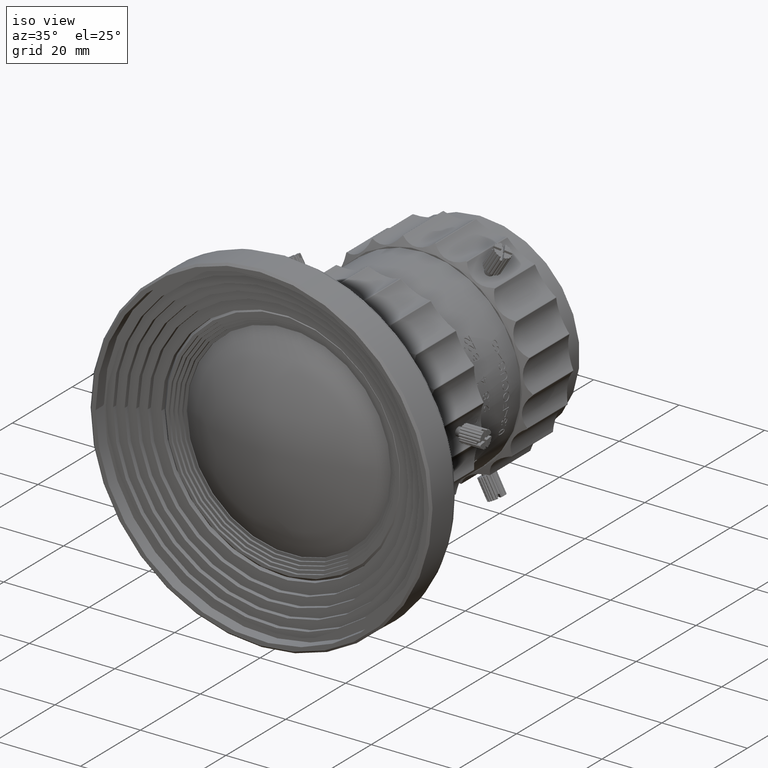
[diagram: clean part render]
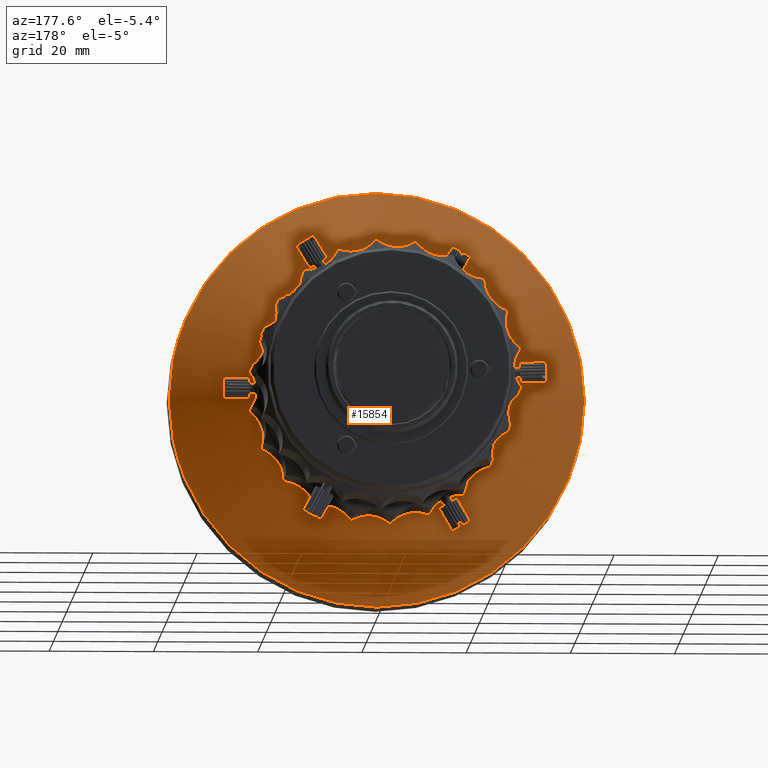
[diagram: tour spotlight — one face highlighted and labeled with its STEP entity id]
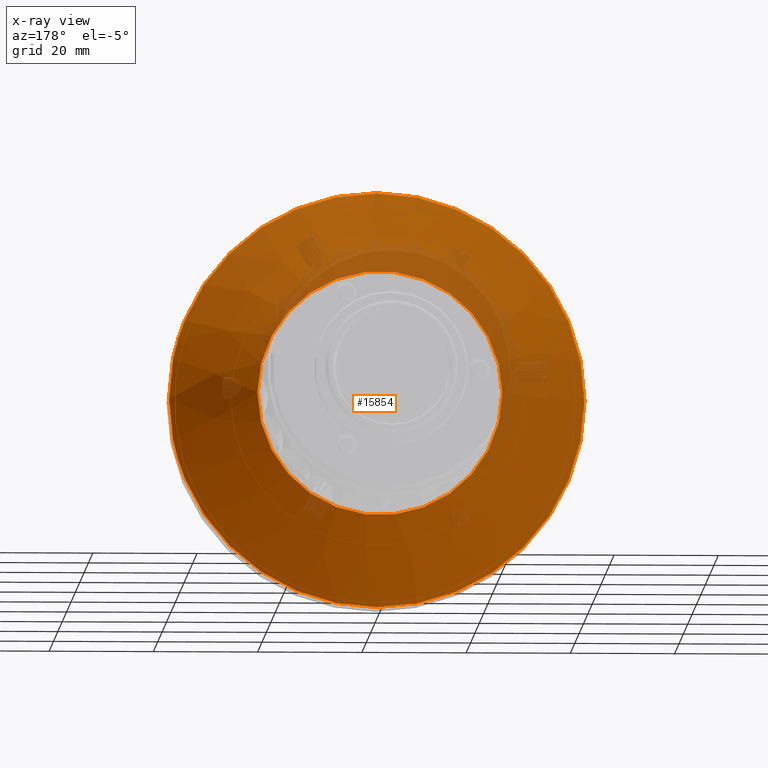
[diagram: x-ray of the same camera — body ghosted, this tour face saturated]
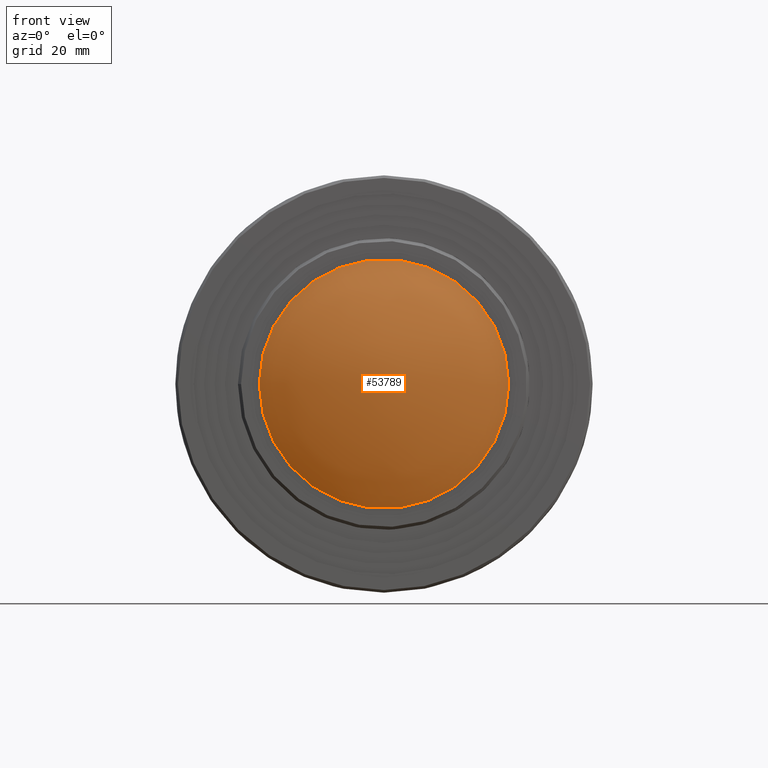
[diagram: tour spotlight — one face highlighted and labeled with its STEP entity id]
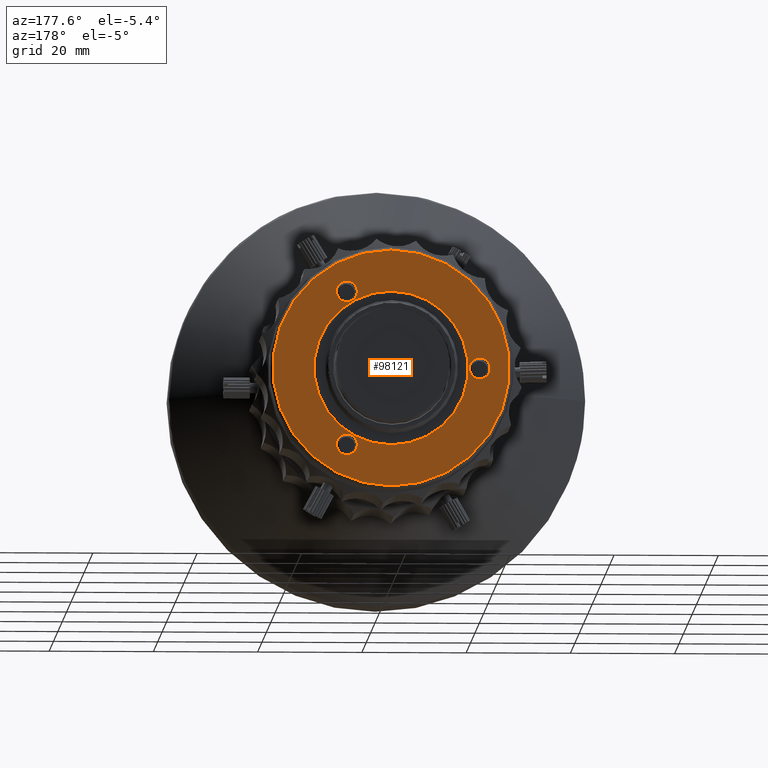
[diagram: tour spotlight — one face highlighted and labeled with its STEP entity id]
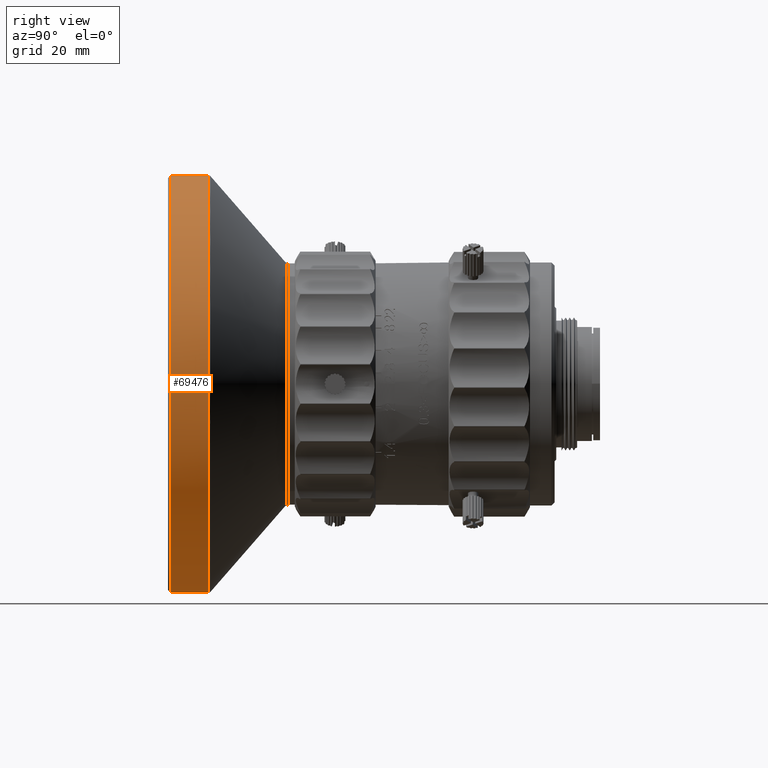
[diagram: tour spotlight — one face highlighted and labeled with its STEP entity id]
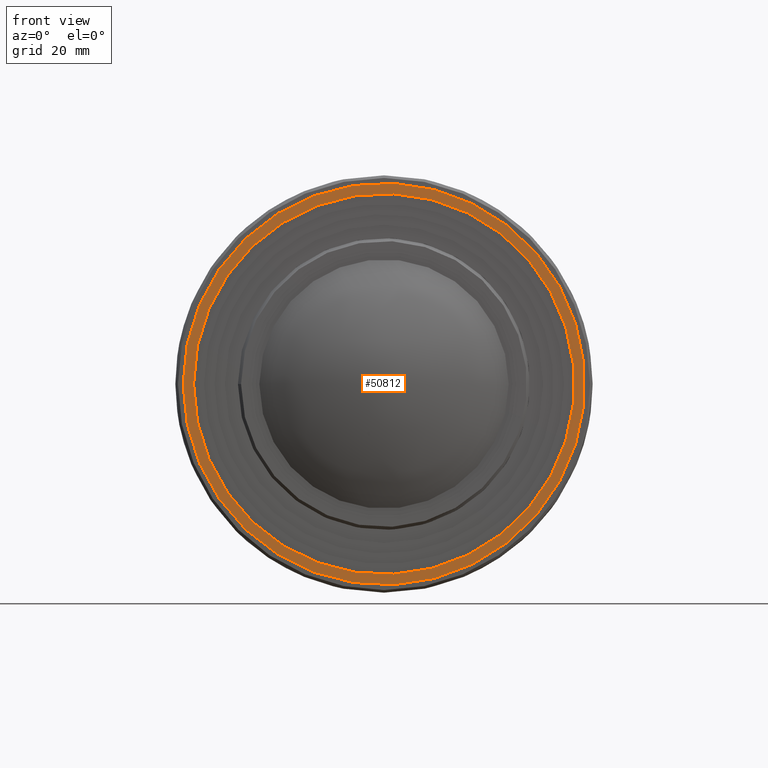
[diagram: tour spotlight — one face highlighted and labeled with its STEP entity id]
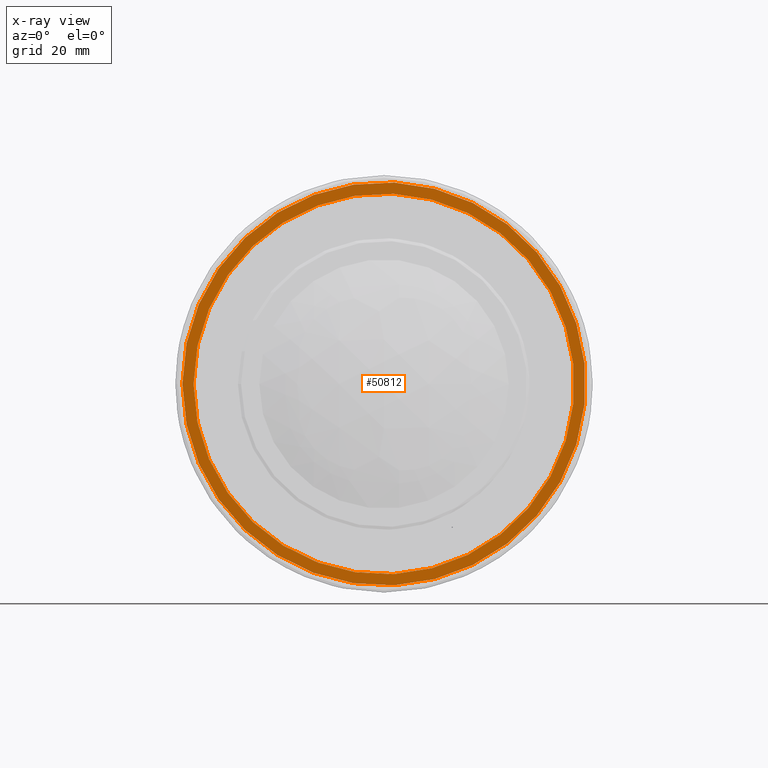
[diagram: x-ray of the same camera — body ghosted, this tour face saturated]
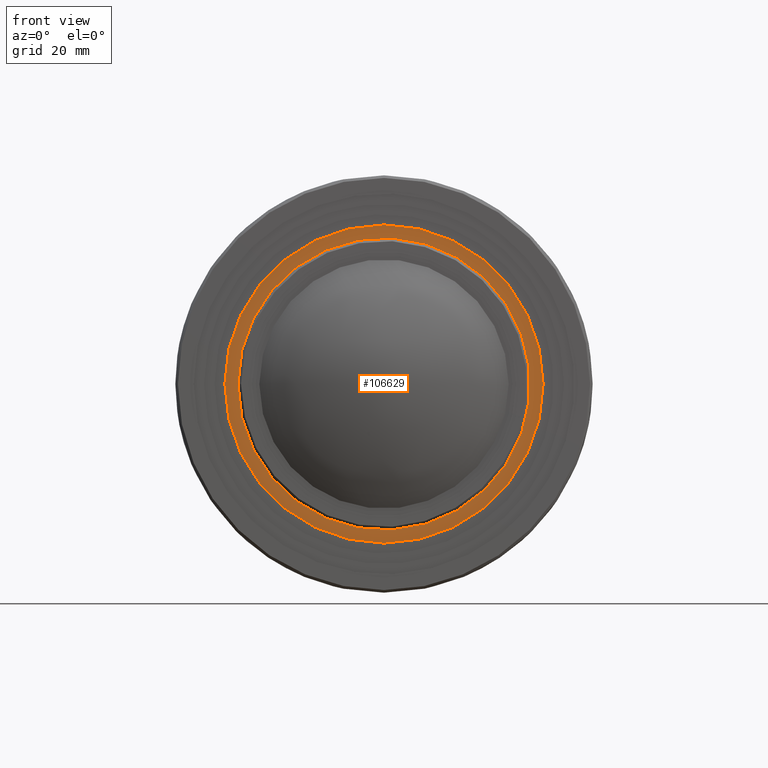
[diagram: tour spotlight — one face highlighted and labeled with its STEP entity id]
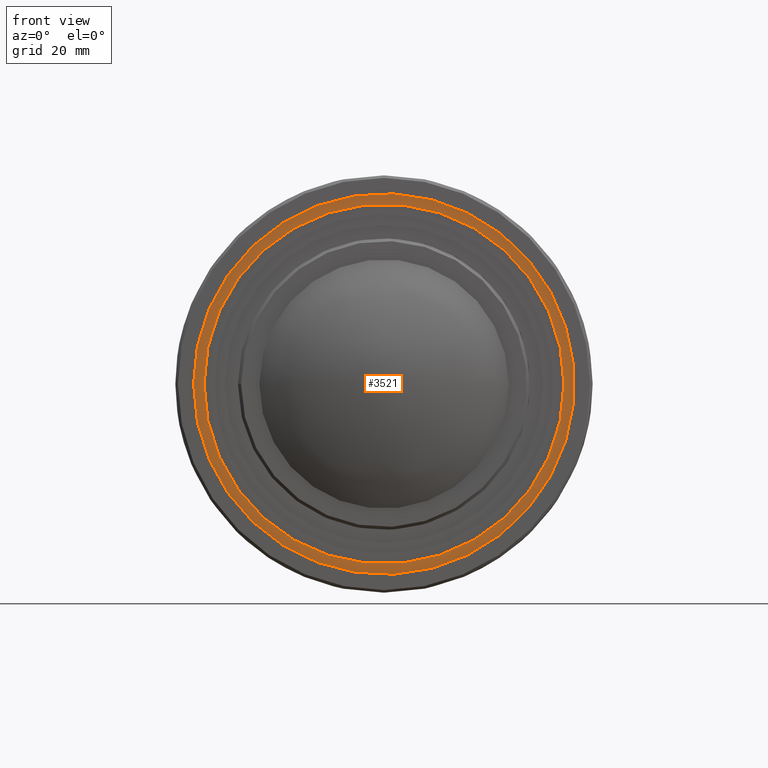
[diagram: tour spotlight — one face highlighted and labeled with its STEP entity id]
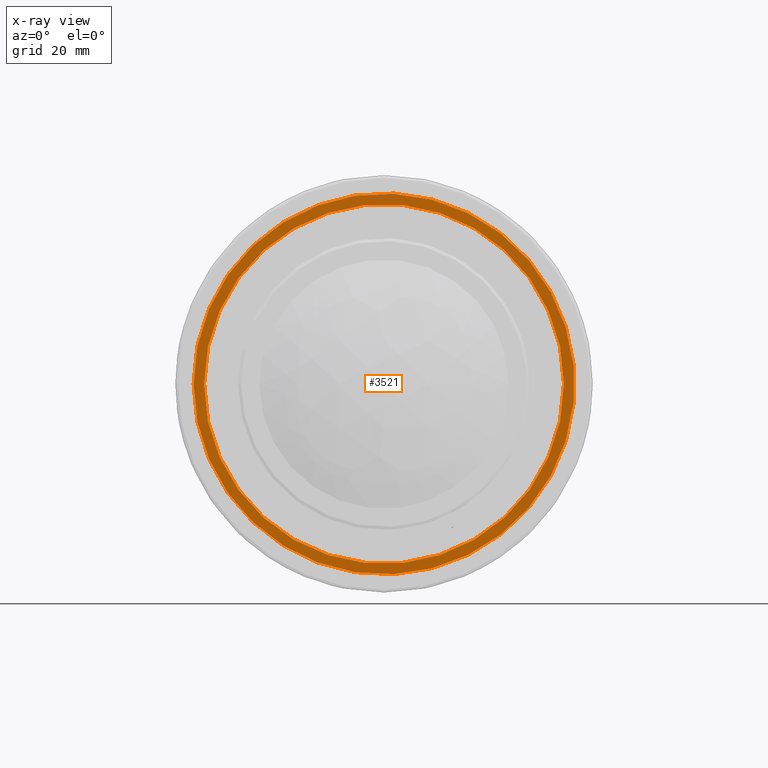
[diagram: x-ray of the same camera — body ghosted, this tour face saturated]
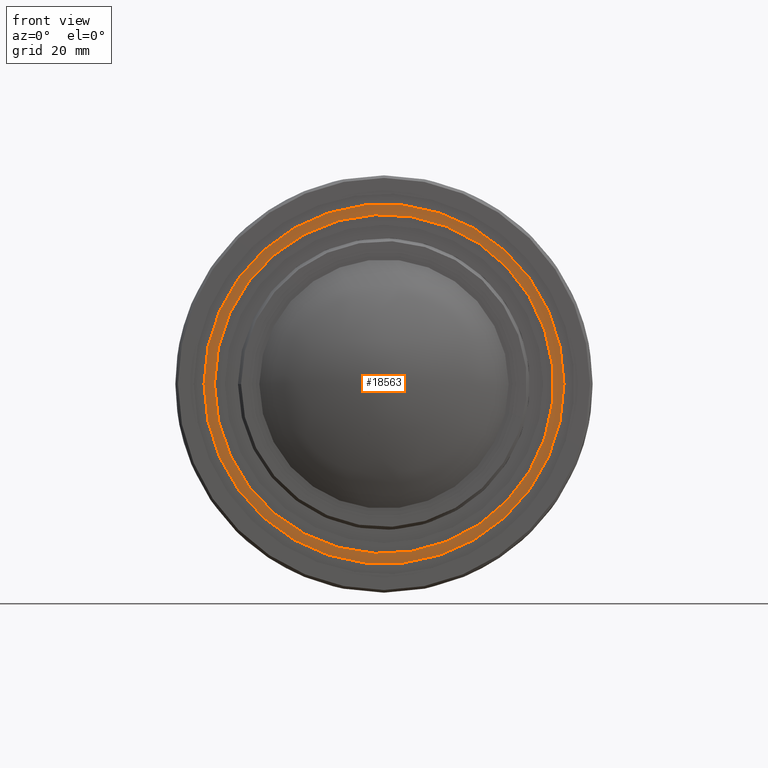
[diagram: tour spotlight — one face highlighted and labeled with its STEP entity id]
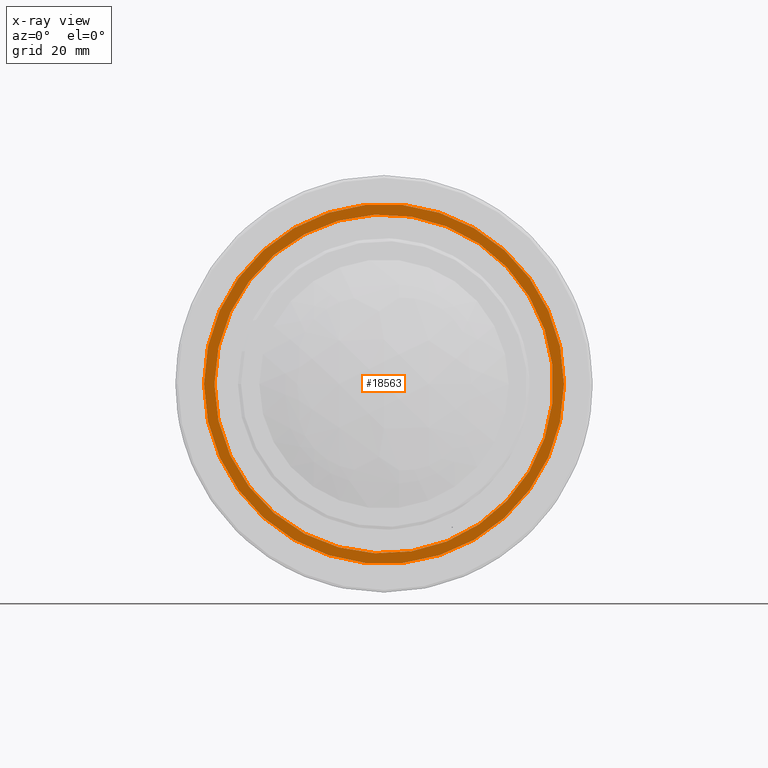
[diagram: x-ray of the same camera — body ghosted, this tour face saturated]
A machine part: a face-by-face anatomy tour. The part has 2119 B-rep faces; the first image is the clean iso view, then the 8 largest visible faces are spotlighted one at a time (largest first), each with its STEP entity span.

Face 1 — auxiliary view, entity #15854. An x-ray twin of the same camera follows (body ghosted, this face saturated) — the face is partly hidden behind the body. In plain terms, the highlighted conical surface has half-angle 48.643 deg.
Definition (entity closure, byte-faithful):
#188 = CONICAL_SURFACE ( 'NONE', #63703, 39.83037207359400611, 0.8489807077477067310 ) ;
#3469 = DIRECTION ( 'NONE',  ( -1.000000000000000000, 0.000000000000000000, 0.000000000000000000 ) ) ;
#15854 = ADVANCED_FACE ( 'NONE', ( #89862, #96736 ), #188, .T. ) ;
#16286 = AXIS2_PLACEMENT_3D ( 'NONE', #97969, #39382, #28605 ) ;
#28605 = DIRECTION ( 'NONE',  ( -1.000000000000000000, 0.000000000000000000, 0.000000000000000000 ) ) ;
#29289 = EDGE_CURVE ( 'NONE', #64382, #64382, #90716, .T. ) ;
#32269 = EDGE_LOOP ( 'NONE', ( #98812 ) ) ;
#35349 = CIRCLE ( 'NONE', #97090, 39.83037207359399190 ) ;
#39382 = DIRECTION ( 'NONE',  ( 8.276111117004384713E-19, -1.000000000000000000, 4.121950411566822445E-17 ) ) ;
#63703 = AXIS2_PLACEMENT_3D ( 'NONE', #106380, #106938, #3469 ) ;
#64382 = VERTEX_POINT ( 'NONE', #108721 ) ;
#67450 = CARTESIAN_POINT ( 'NONE',  ( 7.004645490089631416E-07, 8.149319000467299290, 4.044133903876059509E-07 ) ) ;
#76043 = ORIENTED_EDGE ( 'NONE', *, *, #89246, .T. ) ;
#77084 = DIRECTION ( 'NONE',  ( -1.000000000000000000, 8.710556219618456698E-17, 0.000000000000000000 ) ) ;
#89239 = VERTEX_POINT ( 'NONE', #105755 ) ;
#89246 = EDGE_CURVE ( 'NONE', #89239, #89239, #35349, .T. ) ;
#89862 = FACE_BOUND ( 'NONE', #32269, .T. ) ;
#90716 = CIRCLE ( 'NONE', #16286, 23.46963037283925857 ) ;
#93049 = DIRECTION ( 'NONE',  ( -8.276111117004384713E-19, 1.000000000000000000, -4.121950411566822445E-17 ) ) ;
#96736 = FACE_OUTER_BOUND ( 'NONE', #110382, .T. ) ;
#97090 = AXIS2_PLACEMENT_3D ( 'NONE', #67450, #93049, #77084 ) ;
#97969 = CARTESIAN_POINT ( 'NONE',  ( 7.004645489970439058E-07, 22.55143953829105286, 4.044133897939576158E-07 ) ) ;
#98812 = ORIENTED_EDGE ( 'NONE', *, *, #29289, .T. ) ;
#105755 = CARTESIAN_POINT ( 'NONE',  ( -39.83037137312944509, 8.149319000467301066, 4.044133903876059509E-07 ) ) ;
#106380 = CARTESIAN_POINT ( 'NONE',  ( 7.004645490089631416E-07, 8.149319000467297514, 4.044133903876059509E-07 ) ) ;
#106938 = DIRECTION ( 'NONE',  ( 8.276111117004384713E-19, -1.000000000000000000, 4.121950411566822445E-17 ) ) ;
#108721 = CARTESIAN_POINT ( 'NONE',  ( -23.46962967237471176, 22.55143953829105286, 4.044133897939576158E-07 ) ) ;
#110382 = EDGE_LOOP ( 'NONE', ( #76043 ) ) ;

Face 2 — front view, entity #53789. In plain terms, the highlighted face is a freeform B-spline surface patch.
Definition (entity closure, byte-faithful):
#1873 = CARTESIAN_POINT ( 'NONE',  ( 9.147441241937729117, -2.693299827284332704, 9.659772561777753452 ) ) ;
#8129 = CARTESIAN_POINT ( 'NONE',  ( -8.966376377273121534, -2.730121294962049916, 9.666880870649489310 ) ) ;
#9156 = DIRECTION ( 'NONE',  ( -1.000000000000000000, -3.625760741669109509E-16, 4.121950419335471638E-17 ) ) ;
#15103 = CARTESIAN_POINT ( 'NONE',  ( -24.17811811711338521, 15.96994860086076073, -20.35361133060899164 ) ) ;
#20016 = CARTESIAN_POINT ( 'NONE',  ( 24.32135826872721296, 16.04796389978081805, -20.30300111538242902 ) ) ;
#23074 = CARTESIAN_POINT ( 'NONE',  ( 9.147441241937729117, 7.748719356255715063, -25.68690091939485498 ) ) ;
#26206 = DIRECTION ( 'NONE',  ( 3.269593581241931522E-16, -1.000000000000000000, 4.121950411566821212E-17 ) ) ;
#27439 = CARTESIAN_POINT ( 'NONE',  ( 24.32135826872720941, 7.779648025615649942, -7.557449024746073718 ) ) ;
#34857 = CARTESIAN_POINT ( 'NONE',  ( 9.147441241937729117, -2.712168102511213430, -9.561514800971979255 ) ) ;
#40148 = CARTESIAN_POINT ( 'NONE',  ( -24.17811811711338166, 16.00996863584735408, 20.41517031450808162 ) ) ;
#44384 = VERTEX_POINT ( 'NONE', #106315 ) ;
#46739 = CARTESIAN_POINT ( 'NONE',  ( 9.147441241937730894, 7.799225905317338281, 25.76459009082489260 ) ) ;
#48681 = FACE_OUTER_BOUND ( 'NONE', #106896, .T. ) ;
#49486 =( BOUNDED_SURFACE ( )  B_SPLINE_SURFACE ( 3, 3, ( 
 ( #15103, #49813, #84461, #40148 ),
 ( #100961, #95110, #8129, #77476 ),
 ( #23074, #34857, #1873, #46739 ),
 ( #20016, #27439, #88257, #54173 ) ),
 .UNSPECIFIED., .F., .F., .T. ) 
 B_SPLINE_SURFACE_WITH_KNOTS ( ( 4, 4 ),
 ( 4, 4 ),
 ( 0.000000000000000000, 1.000000000000000000 ),
 ( 0.000000000000000000, 1.000000000000000000 ),
 .UNSPECIFIED. ) 
 GEOMETRIC_REPRESENTATION_ITEM ( )  RATIONAL_B_SPLINE_SURFACE ( (
 ( 1.000000000000000000, 0.8922657821891641916, 0.8922657821891641916, 1.000000000000000000),
 ( 0.8924950260881475694, 0.7963427725524795386, 0.7963427725524795386, 0.8924950260881475694),
 ( 0.8924950260881475694, 0.7963427725524795386, 0.7963427725524795386, 0.8924950260881475694),
 ( 1.000000000000000000, 0.8922657821891641916, 0.8922657821891641916, 1.000000000000000000) ) ) 
 REPRESENTATION_ITEM ( '' )  SURFACE ( )  );
#49813 = CARTESIAN_POINT ( 'NONE',  ( -24.17811811711338876, 7.681021919690297572, -7.576287822635179303 ) ) ;
#53789 = ADVANCED_FACE ( 'NONE', ( #48681 ), #49486, .T. ) ;
#54173 = CARTESIAN_POINT ( 'NONE',  ( 24.32135826872721651, 16.08788442306352451, 20.36440703197681756 ) ) ;
#56517 = CIRCLE ( 'NONE', #100083, 23.92220005088134371 ) ;
#60896 = CARTESIAN_POINT ( 'NONE',  ( 7.004645506032012270E-07, 9.782061376986048273, 4.044133903203057951E-07 ) ) ;
#77476 = CARTESIAN_POINT ( 'NONE',  ( -8.966376377273121534, 7.770125542499756399, 25.78354940564734932 ) ) ;
#82147 = EDGE_CURVE ( 'NONE', #44384, #44384, #56517, .T. ) ;
#84461 = CARTESIAN_POINT ( 'NONE',  ( -24.17811811711338521, 7.695972634968728521, 7.654144805145049801 ) ) ;
#88257 = CARTESIAN_POINT ( 'NONE',  ( 24.32135826872721296, 7.794561565235632372, 7.635112414209267229 ) ) ;
#95110 = CARTESIAN_POINT ( 'NONE',  ( -8.966376377273121534, -2.749003454732582785, -9.568550805781880442 ) ) ;
#97135 = ORIENTED_EDGE ( 'NONE', *, *, #82147, .T. ) ;
#100083 = AXIS2_PLACEMENT_3D ( 'NONE', #60896, #26206, #9156 ) ;
#100961 = CARTESIAN_POINT ( 'NONE',  ( -8.966376377273125087, 7.719581827328529933, -25.70580306590442987 ) ) ;
#106315 = CARTESIAN_POINT ( 'NONE',  ( -23.92219935041679335, 9.782061376986039392, 4.044133913063670245E-07 ) ) ;
#106896 = EDGE_LOOP ( 'NONE', ( #97135 ) ) ;

Face 3 — auxiliary view, entity #98121. In plain terms, the highlighted planar face has unit normal (0, -1, 0).
Definition (entity closure, byte-faithful):
#1748 = VERTEX_POINT ( 'NONE', #11357 ) ;
#2472 = DIRECTION ( 'NONE',  ( 4.757805020752761859E-08, 0.000000000000000000, 0.9999999999999988898 ) ) ;
#3649 = AXIS2_PLACEMENT_3D ( 'NONE', #45673, #87747, #2472 ) ;
#3667 = CARTESIAN_POINT ( 'NONE',  ( 7.004645489543653037E-07, 74.11993814910550782, 4.044133876683301817E-07 ) ) ;
#4290 = DIRECTION ( 'NONE',  ( -4.757805087407528175E-08, 0.000000000000000000, -0.9999999999999988898 ) ) ;
#9614 = ORIENTED_EDGE ( 'NONE', *, *, #14011, .F. ) ;
#11357 = CARTESIAN_POINT ( 'NONE',  ( 8.499999904843907217, 74.11993814910550782, -16.72243186433544437 ) ) ;
#11601 = EDGE_CURVE ( 'NONE', #90725, #90725, #19796, .T. ) ;
#12303 = FACE_BOUND ( 'NONE', #68451, .T. ) ;
#12837 = CARTESIAN_POINT ( 'NONE',  ( 1.404281652445489338E-06, 74.11993814910550782, 14.79289545625323754 ) ) ;
#14011 = EDGE_CURVE ( 'NONE', #38448, #38448, #52704, .T. ) ;
#16430 = EDGE_CURVE ( 'NONE', #55514, #55514, #40314, .T. ) ;
#19732 = FACE_BOUND ( 'NONE', #107236, .T. ) ;
#19796 = CIRCLE ( 'NONE', #96016, 14.79289505183986542 ) ;
#29523 = CARTESIAN_POINT ( 'NONE',  ( 8.500001305772906690, 74.11993814910550782, 12.72243186433548523 ) ) ;
#30395 = CARTESIAN_POINT ( 'NONE',  ( 8.500000000000007105, 74.11993814910550782, -14.72243186433544437 ) ) ;
#38448 = VERTEX_POINT ( 'NONE', #47532 ) ;
#39587 = FACE_BOUND ( 'NONE', #68445, .T. ) ;
#40314 = CIRCLE ( 'NONE', #54859, 2.000000000000000444 ) ;
#45499 = VERTEX_POINT ( 'NONE', #29523 ) ;
#45673 = CARTESIAN_POINT ( 'NONE',  ( 7.004645489543653037E-07, 74.11993814910550782, 4.044133876683301817E-07 ) ) ;
#45898 = DIRECTION ( 'NONE',  ( 8.276111117004355824E-19, -1.000000000000000000, 4.121950411566822445E-17 ) ) ;
#47532 = CARTESIAN_POINT ( 'NONE',  ( 1.780486377428271892E-06, 74.11993814910550782, 22.70000227004319271 ) ) ;
#47559 = DIRECTION ( 'NONE',  ( 4.757805020752762521E-08, 4.121950415504430281E-17, 0.9999999999999990008 ) ) ;
#48626 = DIRECTION ( 'NONE',  ( -8.276111117004355824E-19, 1.000000000000000000, -4.121950411566822445E-17 ) ) ;
#49778 = AXIS2_PLACEMENT_3D ( 'NONE', #89676, #91355, #65200 ) ;
#52704 = CIRCLE ( 'NONE', #3649, 22.70000186562982947 ) ;
#54859 = AXIS2_PLACEMENT_3D ( 'NONE', #98128, #48626, #4290 ) ;
#55417 = DIRECTION ( 'NONE',  ( 4.757805020752761859E-08, 0.000000000000000000, 0.9999999999999988898 ) ) ;
#55514 = VERTEX_POINT ( 'NONE', #106685 ) ;
#58441 = ORIENTED_EDGE ( 'NONE', *, *, #83795, .F. ) ;
#59089 = ORIENTED_EDGE ( 'NONE', *, *, #11601, .F. ) ;
#65200 = DIRECTION ( 'NONE',  ( -4.757805000671354376E-08, 0.000000000000000000, -0.9999999999999988898 ) ) ;
#68445 = EDGE_LOOP ( 'NONE', ( #86538 ) ) ;
#68451 = EDGE_LOOP ( 'NONE', ( #88746 ) ) ;
#73126 = PLANE ( 'NONE',  #81304 ) ;
#77013 = CIRCLE ( 'NONE', #49778, 2.000000000000000444 ) ;
#80452 = EDGE_LOOP ( 'NONE', ( #59089 ) ) ;
#80542 = FACE_BOUND ( 'NONE', #80452, .T. ) ;
#81304 = AXIS2_PLACEMENT_3D ( 'NONE', #91305, #45898, #47559 ) ;
#81967 = CIRCLE ( 'NONE', #96540, 2.000000000000000444 ) ;
#83795 = EDGE_CURVE ( 'NONE', #1748, #1748, #81967, .T. ) ;
#86538 = ORIENTED_EDGE ( 'NONE', *, *, #16430, .F. ) ;
#87747 = DIRECTION ( 'NONE',  ( 8.276111117004355824E-19, -1.000000000000000000, 4.121950411566822445E-17 ) ) ;
#88746 = ORIENTED_EDGE ( 'NONE', *, *, #89078, .F. ) ;
#89078 = EDGE_CURVE ( 'NONE', #45499, #45499, #77013, .T. ) ;
#89085 = FACE_OUTER_BOUND ( 'NONE', #91918, .T. ) ;
#89676 = CARTESIAN_POINT ( 'NONE',  ( 8.500001400929006579, 74.11993814910550782, 14.72243186433548345 ) ) ;
#90725 = VERTEX_POINT ( 'NONE', #12837 ) ;
#91305 = CARTESIAN_POINT ( 'NONE',  ( 7.004645481529941027E-07, 74.11993814910550782, 4.044133876683302347E-07 ) ) ;
#91355 = DIRECTION ( 'NONE',  ( -8.276111117004355824E-19, 1.000000000000000000, -4.121950411566822445E-17 ) ) ;
#91918 = EDGE_LOOP ( 'NONE', ( #9614 ) ) ;
#92305 = DIRECTION ( 'NONE',  ( -8.276111117004355824E-19, 1.000000000000000000, -4.121950411566822445E-17 ) ) ;
#96016 = AXIS2_PLACEMENT_3D ( 'NONE', #3667, #92305, #55417 ) ;
#96540 = AXIS2_PLACEMENT_3D ( 'NONE', #30395, #100875, #101451 ) ;
#98121 = ADVANCED_FACE ( 'NONE', ( #80542, #89085, #39587, #19732, #12303 ), #73126, .F. ) ;
#98128 = CARTESIAN_POINT ( 'NONE',  ( -16.99999929953543543, 74.11993814910550782, 1.213240241196299731E-06 ) ) ;
#100875 = DIRECTION ( 'NONE',  ( -8.276111117004355824E-19, 1.000000000000000000, -4.121950411566822445E-17 ) ) ;
#101451 = DIRECTION ( 'NONE',  ( -4.757805000671354376E-08, 0.000000000000000000, -0.9999999999999988898 ) ) ;
#106685 = CARTESIAN_POINT ( 'NONE',  ( -16.99999939469153887, 74.11993814910550782, -1.999998786759757063 ) ) ;
#107236 = EDGE_LOOP ( 'NONE', ( #58441 ) ) ;

Face 4 — right view, entity #69476. In plain terms, the highlighted cylindrical surface (bore or boss wall) has radius 40 mm, axis along (0, -1, 0).
Definition (entity closure, byte-faithful):
#203 = DIRECTION ( 'NONE',  ( -8.276111117004384713E-19, 1.000000000000000000, -4.121950411566822445E-17 ) ) ;
#12170 = CIRCLE ( 'NONE', #95711, 39.99999756855210364 ) ;
#15113 = FACE_OUTER_BOUND ( 'NONE', #76023, .T. ) ;
#17659 = ORIENTED_EDGE ( 'NONE', *, *, #110176, .T. ) ;
#17790 = CARTESIAN_POINT ( 'NONE',  ( 7.004645490152938659E-07, 0.4999999671200720530, 4.044133907029071363E-07 ) ) ;
#19205 = VERTEX_POINT ( 'NONE', #19762 ) ;
#19762 = CARTESIAN_POINT ( 'NONE',  ( -39.99999686808755683, 0.4999999671200720530, 4.044133907029071363E-07 ) ) ;
#24755 = FACE_OUTER_BOUND ( 'NONE', #66568, .T. ) ;
#31666 = DIRECTION ( 'NONE',  ( -1.000000000000000000, 0.000000000000000000, 0.000000000000000000 ) ) ;
#37006 = AXIS2_PLACEMENT_3D ( 'NONE', #85031, #57227, #100976 ) ;
#43964 = DIRECTION ( 'NONE',  ( -1.000000000000000000, 0.000000000000000000, 0.000000000000000000 ) ) ;
#50441 = DIRECTION ( 'NONE',  ( -8.276111117004384713E-19, 1.000000000000000000, -4.121950411566822445E-17 ) ) ;
#56810 = VERTEX_POINT ( 'NONE', #91470 ) ;
#57227 = DIRECTION ( 'NONE',  ( 8.276111117004384713E-19, -1.000000000000000000, 4.121950411566822445E-17 ) ) ;
#58409 = CARTESIAN_POINT ( 'NONE',  ( 7.004645490092737910E-07, 7.774015350826616100, 4.044133904030758430E-07 ) ) ;
#62511 = ORIENTED_EDGE ( 'NONE', *, *, #100775, .F. ) ;
#66568 = EDGE_LOOP ( 'NONE', ( #62511 ) ) ;
#69476 = ADVANCED_FACE ( 'NONE', ( #24755, #15113 ), #84471, .T. ) ;
#76023 = EDGE_LOOP ( 'NONE', ( #17659 ) ) ;
#84471 = CYLINDRICAL_SURFACE ( 'NONE', #37006, 39.99999756855210364 ) ;
#85031 = CARTESIAN_POINT ( 'NONE',  ( 7.004645490181673193E-07, -2.971951075348918891, 4.044133908460192820E-07 ) ) ;
#91470 = CARTESIAN_POINT ( 'NONE',  ( -39.99999708453130864, 7.774015350826616100, 4.044133904030758430E-07 ) ) ;
#95711 = AXIS2_PLACEMENT_3D ( 'NONE', #17790, #203, #43964 ) ;
#100775 = EDGE_CURVE ( 'NONE', #56810, #56810, #101516, .T. ) ;
#100976 = DIRECTION ( 'NONE',  ( -1.000000000000000000, 0.000000000000000000, 0.000000000000000000 ) ) ;
#101516 = CIRCLE ( 'NONE', #103307, 39.99999778499585545 ) ;
#103307 = AXIS2_PLACEMENT_3D ( 'NONE', #58409, #50441, #31666 ) ;
#110176 = EDGE_CURVE ( 'NONE', #19205, #19205, #12170, .T. ) ;

Face 5 — front view, entity #50812. An x-ray twin of the same camera follows (body ghosted, this face saturated) — the face is partly hidden behind the body. In plain terms, the highlighted planar face has unit normal (-0, 1, -0).
Definition (entity closure, byte-faithful):
#1334 = EDGE_LOOP ( 'NONE', ( #66056 ) ) ;
#1783 = CARTESIAN_POINT ( 'NONE',  ( 7.004645490132247761E-07, 2.999999996141023750, -1.213240176054694962E-06 ) ) ;
#3503 = AXIS2_PLACEMENT_3D ( 'NONE', #43397, #60438, #9823 ) ;
#5157 = EDGE_CURVE ( 'NONE', #8370, #8370, #26478, .T. ) ;
#8370 = VERTEX_POINT ( 'NONE', #60677 ) ;
#9823 = DIRECTION ( 'NONE',  ( -1.000000000000000000, 0.000000000000000000, 0.000000000000000000 ) ) ;
#21020 = AXIS2_PLACEMENT_3D ( 'NONE', #110117, #99897, #41333 ) ;
#24648 = PLANE ( 'NONE',  #98802 ) ;
#26478 = CIRCLE ( 'NONE', #21020, 38.64999732234564789 ) ;
#27146 = EDGE_CURVE ( 'NONE', #74022, #74022, #103303, .T. ) ;
#33195 = DIRECTION ( 'NONE',  ( 1.000000000000000000, 8.276111117004384713E-19, -0.000000000000000000 ) ) ;
#36447 = FACE_OUTER_BOUND ( 'NONE', #1334, .T. ) ;
#41333 = DIRECTION ( 'NONE',  ( -1.000000000000000000, 0.000000000000000000, 0.000000000000000000 ) ) ;
#43397 = CARTESIAN_POINT ( 'NONE',  ( 7.004645490132247761E-07, 2.999999995404723396, 4.044133905998584314E-07 ) ) ;
#50812 = ADVANCED_FACE ( 'NONE', ( #36447, #88162 ), #24648, .F. ) ;
#56730 = EDGE_LOOP ( 'NONE', ( #101927 ) ) ;
#60438 = DIRECTION ( 'NONE',  ( 8.276111117004384713E-19, -1.000000000000000000, 4.121950411566822445E-17 ) ) ;
#60677 = CARTESIAN_POINT ( 'NONE',  ( -38.64999662188110108, 2.999999996877323216, 4.044133905998584314E-07 ) ) ;
#66056 = ORIENTED_EDGE ( 'NONE', *, *, #5157, .T. ) ;
#74022 = VERTEX_POINT ( 'NONE', #81986 ) ;
#81986 = CARTESIAN_POINT ( 'NONE',  ( -36.49999661697803788, 2.999999995404723396, 4.044133905998584314E-07 ) ) ;
#88162 = FACE_BOUND ( 'NONE', #56730, .T. ) ;
#96700 = DIRECTION ( 'NONE',  ( -8.276111117004384713E-19, 1.000000000000000000, -4.121950411566822445E-17 ) ) ;
#98802 = AXIS2_PLACEMENT_3D ( 'NONE', #1783, #96700, #33195 ) ;
#99897 = DIRECTION ( 'NONE',  ( 8.276111117004384713E-19, -1.000000000000000000, 4.121950411566822445E-17 ) ) ;
#101927 = ORIENTED_EDGE ( 'NONE', *, *, #27146, .F. ) ;
#103303 = CIRCLE ( 'NONE', #3503, 36.49999731744258469 ) ;
#110117 = CARTESIAN_POINT ( 'NONE',  ( 7.004645490132247761E-07, 2.999999996877323216, 4.044133905998584314E-07 ) ) ;

Face 6 — front view, entity #106629. In plain terms, the highlighted planar face has unit normal (-0, 1, -0).
Definition (entity closure, byte-faithful):
#11759 = VERTEX_POINT ( 'NONE', #56105 ) ;
#12856 = DIRECTION ( 'NONE',  ( -8.276111117004384713E-19, 1.000000000000000000, -4.121950411566822445E-17 ) ) ;
#18190 = EDGE_CURVE ( 'NONE', #73658, #73658, #64082, .T. ) ;
#20044 = ORIENTED_EDGE ( 'NONE', *, *, #18190, .F. ) ;
#27379 = DIRECTION ( 'NONE',  ( -1.000000000000000000, 0.000000000000000000, 0.000000000000000000 ) ) ;
#29911 = PLANE ( 'NONE',  #53946 ) ;
#41990 = DIRECTION ( 'NONE',  ( -1.000000000000000000, 0.000000000000000000, 0.000000000000000000 ) ) ;
#47003 = FACE_OUTER_BOUND ( 'NONE', #64543, .T. ) ;
#48583 = EDGE_CURVE ( 'NONE', #11759, #11759, #100411, .T. ) ;
#52990 = EDGE_LOOP ( 'NONE', ( #20044 ) ) ;
#53946 = AXIS2_PLACEMENT_3D ( 'NONE', #90743, #12856, #107812 ) ;
#56105 = CARTESIAN_POINT ( 'NONE',  ( -30.49999661697070152, 6.999999995405171482, 4.044133904349802389E-07 ) ) ;
#64082 = CIRCLE ( 'NONE', #71321, 28.00268161420610369 ) ;
#64543 = EDGE_LOOP ( 'NONE', ( #90922 ) ) ;
#71321 = AXIS2_PLACEMENT_3D ( 'NONE', #72802, #88752, #27379 ) ;
#72802 = CARTESIAN_POINT ( 'NONE',  ( 7.004645490099144655E-07, 6.999999892427100967, 4.044133904349804507E-07 ) ) ;
#73658 = VERTEX_POINT ( 'NONE', #108355 ) ;
#82301 = AXIS2_PLACEMENT_3D ( 'NONE', #93718, #95401, #41990 ) ;
#88752 = DIRECTION ( 'NONE',  ( 8.276111117004384713E-19, -1.000000000000000000, 4.121950411566822445E-17 ) ) ;
#90743 = CARTESIAN_POINT ( 'NONE',  ( 7.004645490099144655E-07, 6.999999943916136225, -1.213240176219573102E-06 ) ) ;
#90922 = ORIENTED_EDGE ( 'NONE', *, *, #48583, .T. ) ;
#93718 = CARTESIAN_POINT ( 'NONE',  ( 7.004645490099144655E-07, 6.999999995405171482, 4.044133904349802389E-07 ) ) ;
#95401 = DIRECTION ( 'NONE',  ( 8.276111117004384713E-19, -1.000000000000000000, 4.121950411566822445E-17 ) ) ;
#98169 = FACE_BOUND ( 'NONE', #52990, .T. ) ;
#100411 = CIRCLE ( 'NONE', #82301, 30.49999731743524833 ) ;
#106629 = ADVANCED_FACE ( 'NONE', ( #47003, #98169 ), #29911, .F. ) ;
#107812 = DIRECTION ( 'NONE',  ( 1.000000000000000000, 8.276111117004384713E-19, -0.000000000000000000 ) ) ;
#108355 = CARTESIAN_POINT ( 'NONE',  ( -28.00268091374155688, 6.999999892427100967, 4.044133904349804507E-07 ) ) ;

Face 7 — front view, entity #3521. An x-ray twin of the same camera follows (body ghosted, this face saturated) — the face is partly hidden behind the body. In plain terms, the highlighted planar face has unit normal (-0, 1, -0).
Definition (entity closure, byte-faithful):
#3521 = ADVANCED_FACE ( 'NONE', ( #52382, #61452 ), #94990, .F. ) ;
#12860 = DIRECTION ( 'NONE',  ( -1.000000000000000000, 0.000000000000000000, 0.000000000000000000 ) ) ;
#16924 = CIRCLE ( 'NONE', #27827, 34.49999731744014042 ) ;
#20371 = EDGE_CURVE ( 'NONE', #57183, #57183, #31595, .T. ) ;
#24626 = ORIENTED_EDGE ( 'NONE', *, *, #68745, .F. ) ;
#26606 = DIRECTION ( 'NONE',  ( -1.000000000000000000, 0.000000000000000000, 0.000000000000000000 ) ) ;
#27327 = CARTESIAN_POINT ( 'NONE',  ( 7.004645490123972250E-07, 3.999999995405057795, -1.213240176095914550E-06 ) ) ;
#27827 = AXIS2_PLACEMENT_3D ( 'NONE', #45333, #63502, #12860 ) ;
#31595 = CIRCLE ( 'NONE', #91497, 36.49999731744258469 ) ;
#32142 = CARTESIAN_POINT ( 'NONE',  ( -36.49999661697803788, 3.999999995405057795, 4.044133905586387377E-07 ) ) ;
#33612 = DIRECTION ( 'NONE',  ( -8.276111117004384713E-19, 1.000000000000000000, -4.121950411566822445E-17 ) ) ;
#45333 = CARTESIAN_POINT ( 'NONE',  ( 7.004645490123972250E-07, 3.999999995405057795, 4.044133905586387377E-07 ) ) ;
#52224 = CARTESIAN_POINT ( 'NONE',  ( 7.004645490123972250E-07, 3.999999995405057795, 4.044133905586387377E-07 ) ) ;
#52382 = FACE_OUTER_BOUND ( 'NONE', #97045, .T. ) ;
#52945 = DIRECTION ( 'NONE',  ( 1.000000000000000000, 8.276111117004384713E-19, -0.000000000000000000 ) ) ;
#54858 = CARTESIAN_POINT ( 'NONE',  ( -34.49999661697559361, 3.999999995405057795, 4.044133905586387377E-07 ) ) ;
#56330 = ORIENTED_EDGE ( 'NONE', *, *, #20371, .T. ) ;
#57183 = VERTEX_POINT ( 'NONE', #32142 ) ;
#61452 = FACE_BOUND ( 'NONE', #76118, .T. ) ;
#63502 = DIRECTION ( 'NONE',  ( 8.276111117004384713E-19, -1.000000000000000000, 4.121950411566822445E-17 ) ) ;
#68745 = EDGE_CURVE ( 'NONE', #110362, #110362, #16924, .T. ) ;
#76118 = EDGE_LOOP ( 'NONE', ( #24626 ) ) ;
#86855 = DIRECTION ( 'NONE',  ( 8.276111117004384713E-19, -1.000000000000000000, 4.121950411566822445E-17 ) ) ;
#91497 = AXIS2_PLACEMENT_3D ( 'NONE', #52224, #86855, #26606 ) ;
#94990 = PLANE ( 'NONE',  #104391 ) ;
#97045 = EDGE_LOOP ( 'NONE', ( #56330 ) ) ;
#104391 = AXIS2_PLACEMENT_3D ( 'NONE', #27327, #33612, #52945 ) ;
#110362 = VERTEX_POINT ( 'NONE', #54858 ) ;

Face 8 — front view, entity #18563. An x-ray twin of the same camera follows (body ghosted, this face saturated) — the face is partly hidden behind the body. In plain terms, the highlighted planar face has unit normal (-0, 1, -0).
Definition (entity closure, byte-faithful):
#3948 = VERTEX_POINT ( 'NONE', #83486 ) ;
#6807 = FACE_BOUND ( 'NONE', #55607, .T. ) ;
#7706 = CARTESIAN_POINT ( 'NONE',  ( -32.49999661697314934, 4.999999995405391751, 4.044133905174193087E-07 ) ) ;
#8716 = DIRECTION ( 'NONE',  ( -1.000000000000000000, 0.000000000000000000, 0.000000000000000000 ) ) ;
#18563 = ADVANCED_FACE ( 'NONE', ( #26099, #6807 ), #86352, .F. ) ;
#24408 = DIRECTION ( 'NONE',  ( 1.000000000000000000, 8.276111117004384713E-19, -0.000000000000000000 ) ) ;
#26099 = FACE_OUTER_BOUND ( 'NONE', #27373, .T. ) ;
#26904 = DIRECTION ( 'NONE',  ( 8.276111117004384713E-19, -1.000000000000000000, 4.121950411566822445E-17 ) ) ;
#27373 = EDGE_LOOP ( 'NONE', ( #110986 ) ) ;
#43178 = DIRECTION ( 'NONE',  ( -8.276111117004384713E-19, 1.000000000000000000, -4.121950411566822445E-17 ) ) ;
#50385 = VERTEX_POINT ( 'NONE', #7706 ) ;
#54090 = AXIS2_PLACEMENT_3D ( 'NONE', #67432, #87294, #67985 ) ;
#54605 = EDGE_CURVE ( 'NONE', #50385, #50385, #89379, .T. ) ;
#55607 = EDGE_LOOP ( 'NONE', ( #66040 ) ) ;
#60786 = CARTESIAN_POINT ( 'NONE',  ( 7.004645490115695679E-07, 4.999999995405391751, -1.213240176137133926E-06 ) ) ;
#66040 = ORIENTED_EDGE ( 'NONE', *, *, #54605, .F. ) ;
#67432 = CARTESIAN_POINT ( 'NONE',  ( 7.004645490115695679E-07, 4.999999995405391751, 4.044133905174193087E-07 ) ) ;
#67985 = DIRECTION ( 'NONE',  ( -1.000000000000000000, 0.000000000000000000, 0.000000000000000000 ) ) ;
#79453 = CIRCLE ( 'NONE', #54090, 34.49999731744014042 ) ;
#83486 = CARTESIAN_POINT ( 'NONE',  ( -34.49999661697559361, 4.999999995405391751, 4.044133905174193087E-07 ) ) ;
#86009 = CARTESIAN_POINT ( 'NONE',  ( 7.004645490115695679E-07, 4.999999995405391751, 4.044133905174193087E-07 ) ) ;
#86352 = PLANE ( 'NONE',  #91341 ) ;
#87294 = DIRECTION ( 'NONE',  ( 8.276111117004384713E-19, -1.000000000000000000, 4.121950411566822445E-17 ) ) ;
#89379 = CIRCLE ( 'NONE', #91157, 32.49999731743769615 ) ;
#91157 = AXIS2_PLACEMENT_3D ( 'NONE', #86009, #26904, #8716 ) ;
#91341 = AXIS2_PLACEMENT_3D ( 'NONE', #60786, #43178, #24408 ) ;
#98467 = EDGE_CURVE ( 'NONE', #3948, #3948, #79453, .T. ) ;
#110986 = ORIENTED_EDGE ( 'NONE', *, *, #98467, .T. ) ;